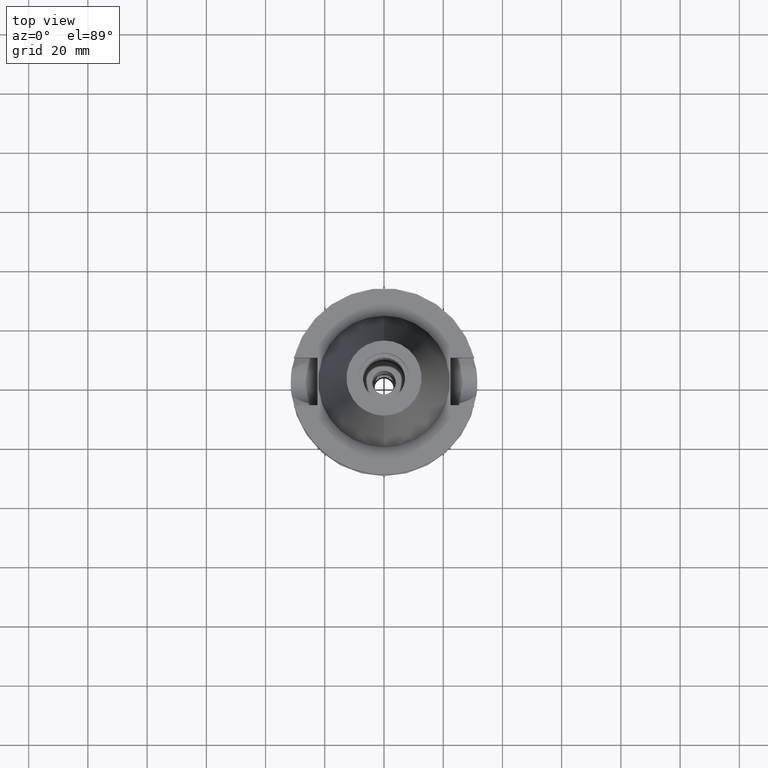
[diagram: clean part render]
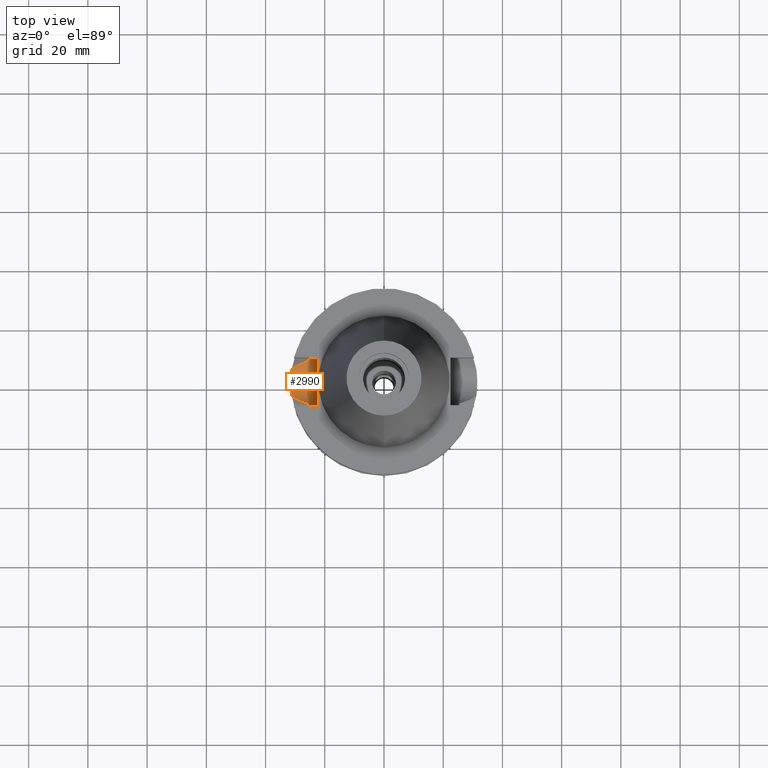
[diagram: same view with one face highlighted and labeled with its STEP entity id]
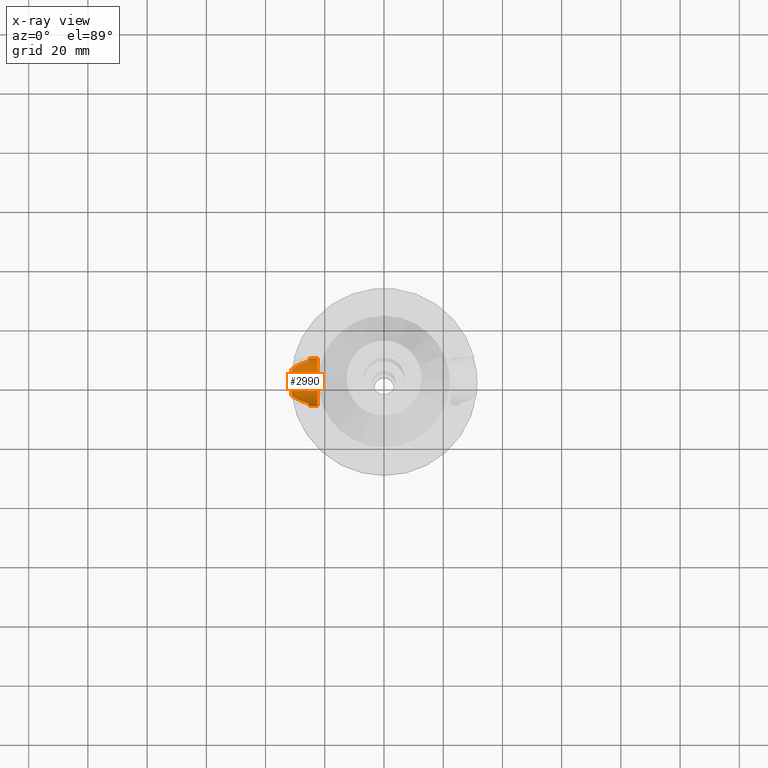
[diagram: x-ray of the same camera — body ghosted, the highlighted face saturated]
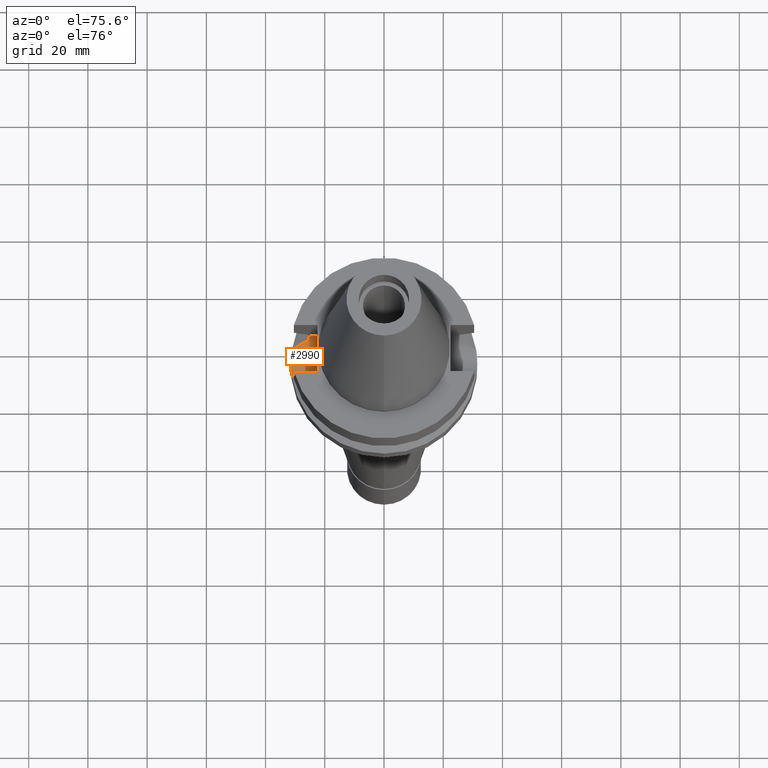
[diagram: same view with one face highlighted and labeled with its STEP entity id]
A machine part, top view. The second image highlights one B-rep face of the part: STEP entity #2990.
The next image is the same camera in x-ray: the body ghosted, the highlighted face saturated — about 0% of this face is hidden behind the body in this view.
A second angle (auxiliary view) of the same face is appended — the face is thin or edge-on in the first view.
In plain terms, the highlighted cylindrical surface (edge-blend (fillet) strip) has radius 8.05 mm, axis along (-1, 0, 0).
Its self-contained STEP definition (entity closure, byte-faithful):
#9 = CARTESIAN_POINT ( 'NONE',  ( -25.30215616128705136, 7.877576232114838817, -16.61085564858937857 ) ) ;
#84 = CARTESIAN_POINT ( 'NONE',  ( -28.27045253369333011, 6.145482800979009674, -20.15058811151968499 ) ) ;
#96 = CARTESIAN_POINT ( 'NONE',  ( -28.47105126580410683, 6.056640159330266115, -20.25303779652521996 ) ) ;
#126 = CARTESIAN_POINT ( 'NONE',  ( -27.73059495071474245, 6.369786792120077479, -19.87477692749754254 ) ) ;
#141 = LINE ( 'NONE', #2816, #1490 ) ;
#145 = CARTESIAN_POINT ( 'NONE',  ( -31.17899877608999759, 4.485536235554000051, -21.63449434733000132 ) ) ;
#206 = CARTESIAN_POINT ( 'NONE',  ( -25.48481820018466237, -7.266687417048209419, -18.43221401829534400 ) ) ;
#244 = CARTESIAN_POINT ( 'NONE',  ( -31.37925987155876939, 2.755005892786295263, -22.51447617963157199 ) ) ;
#247 = CARTESIAN_POINT ( 'NONE',  ( -29.56189235740183108, -5.521825139234294966, -20.81012895460555967 ) ) ;
#253 = CARTESIAN_POINT ( 'NONE',  ( -31.43631590508134366, -2.004794963451471457, -22.74750204099790807 ) ) ;
#269 = CARTESIAN_POINT ( 'NONE',  ( -31.17899877608999759, -4.485536235554000051, -21.63449434733000132 ) ) ;
#275 = CARTESIAN_POINT ( 'NONE',  ( -26.70417489280706747, -6.775583212540526645, -19.35007232993679338 ) ) ;
#285 = CARTESIAN_POINT ( 'NONE',  ( -25.24772266958000344, 8.050000000000000711, -14.94999999999999929 ) ) ;
#331 = EDGE_CURVE ( 'NONE', #1699, #2464, #1678, .T. ) ;
#350 = ORIENTED_EDGE ( 'NONE', *, *, #1359, .F. ) ;
#358 = CARTESIAN_POINT ( 'NONE',  ( -22.50000000000000000, 1.807578675540999863E-14, -14.94999999999999929 ) ) ;
#363 = DIRECTION ( 'NONE',  ( -1.000000000000000000, 0.0000000000000000000, 0.0000000000000000000 ) ) ;
#392 = LINE ( 'NONE', #662, #2479 ) ;
#411 = CARTESIAN_POINT ( 'NONE',  ( -22.50000000000000000, 1.807578675540999863E-14, -14.94999999999999929 ) ) ;
#457 = CARTESIAN_POINT ( 'NONE',  ( -22.50000000000000000, 8.050000000000000711, -14.94999999999999929 ) ) ;
#465 = CARTESIAN_POINT ( 'NONE',  ( -25.32121872273786423, 7.815971166074369592, -16.87703378351192995 ) ) ;
#481 = CARTESIAN_POINT ( 'NONE',  ( -31.36262909393921916, -3.014549055882889572, -22.44710279765630645 ) ) ;
#485 = CARTESIAN_POINT ( 'NONE',  ( -28.81522437845063678, -5.898219020894357456, -20.42875801180866091 ) ) ;
#491 = CARTESIAN_POINT ( 'NONE',  ( -31.46144185279717220, -1.566059266669205696, -22.84872847836161469 ) ) ;
#521 = CARTESIAN_POINT ( 'NONE',  ( -31.49233501189770124, -0.7856882655287129591, -22.97126140121503468 ) ) ;
#559 = CARTESIAN_POINT ( 'NONE',  ( -26.13322443225465364, 6.932527710513030073, -19.05674799956412002 ) ) ;
#581 = CARTESIAN_POINT ( 'NONE',  ( -30.48765877809254121, 5.010034215652698464, -21.28253732965004374 ) ) ;
#646 = VERTEX_POINT ( 'NONE', #2772 ) ;
#662 = CARTESIAN_POINT ( 'NONE',  ( -25.24772266958000344, 8.050000000000000711, -14.94999999999999929 ) ) ;
#669 = CARTESIAN_POINT ( 'NONE',  ( -25.24772266958000344, 8.050000000000000711, -14.94999999999999929 ) ) ;
#709 = CARTESIAN_POINT ( 'NONE',  ( -25.29454717857530710, 7.902012029789356795, -16.48868902742398745 ) ) ;
#722 = CARTESIAN_POINT ( 'NONE',  ( -25.43788636140669368, 7.435506143574321491, -18.11669712823325895 ) ) ;
#735 = CARTESIAN_POINT ( 'NONE',  ( -31.35519737934103190, 3.019151519516993343, -22.41476077769410935 ) ) ;
#749 = CARTESIAN_POINT ( 'NONE',  ( -31.47163488369580264, 1.545921345848329187, -22.89186723549477520 ) ) ;
#751 = CARTESIAN_POINT ( 'NONE',  ( -29.78675866908890768, -5.397312500838548743, -20.92491937365475252 ) ) ;
#756 = DIRECTION ( 'NONE',  ( -1.000000000000000000, 1.616208268639000174E-14, -1.034373291929000154E-14 ) ) ;
#763 = ORIENTED_EDGE ( 'NONE', *, *, #1007, .T. ) ;
#769 = CARTESIAN_POINT ( 'NONE',  ( -29.03082272471785430, -5.794801984329687627, -20.53889729608998138 ) ) ;
#775 = B_SPLINE_CURVE_WITH_KNOTS ( 'NONE', 3,
 ( #2937, #2234, #1506, #751, #247, #987, #769, #485, #1248, #1682, #1485, #2903, #1726, #1714, #275, #2218 ),
 .UNSPECIFIED., .F., .F.,
 ( 4, 2, 2, 1, 1, 1, 1, 2, 2, 4 ),
 ( 0.0000000000000000000, 0.2499999999999762412, 0.3749999999999650280, 0.4374999999999593103, 0.4687499999999557576, 0.4843749999999532041, 0.4921874999999522049, 0.4960937499999523714, 0.4999999999999524825, 1.000000000000000000 ),
 .UNSPECIFIED. ) ;
#789 = ORIENTED_EDGE ( 'NONE', *, *, #331, .T. ) ;
#862 = CARTESIAN_POINT ( 'NONE',  ( -28.56973307510125082, 6.011975293875946313, -20.30343792140064707 ) ) ;
#908 = ORIENTED_EDGE ( 'NONE', *, *, #2238, .T. ) ;
#959 = CARTESIAN_POINT ( 'NONE',  ( -31.41089393677246022, 2.367323069600661523, -22.64407411537204595 ) ) ;
#965 = CARTESIAN_POINT ( 'NONE',  ( -25.24772266958000344, -8.050000000000000711, -14.94999999999999929 ) ) ;
#987 = CARTESIAN_POINT ( 'NONE',  ( -29.21023835764947307, -5.704493398346500044, -20.63054100649248923 ) ) ;
#1000 = CARTESIAN_POINT ( 'NONE',  ( -31.23235557079058111, 4.114652722554404285, -21.88337053007619559 ) ) ;
#1007 = EDGE_CURVE ( 'NONE', #2492, #1094, #1536, .T. ) ;
#1014 = CARTESIAN_POINT ( 'NONE',  ( -31.42484152043655854, -2.174941912365203400, -22.70090902051182979 ) ) ;
#1057 = CARTESIAN_POINT ( 'NONE',  ( -25.53175183775000079, -7.097862220092999941, -18.74774300138999905 ) ) ;
#1071 = ORIENTED_EDGE ( 'NONE', *, *, #2662, .T. ) ;
#1094 = VERTEX_POINT ( 'NONE', #457 ) ;
#1095 = ORIENTED_EDGE ( 'NONE', *, *, #2159, .T. ) ;
#1111 = ORIENTED_EDGE ( 'NONE', *, *, #2043, .F. ) ;
#1216 = CARTESIAN_POINT ( 'NONE',  ( -31.40272378715938117, 2.473736942145134954, -22.61072056107250816 ) ) ;
#1222 = CARTESIAN_POINT ( 'NONE',  ( -25.32550226136659433, -7.802082245156296558, -16.93251888162862073 ) ) ;
#1227 = CARTESIAN_POINT ( 'NONE',  ( -31.41967125704818997, -2.247756301435980930, -22.67985970227132242 ) ) ;
#1232 = CARTESIAN_POINT ( 'NONE',  ( -25.24772266958000344, 8.050000000000022027, -15.27000127552670783 ) ) ;
#1248 = CARTESIAN_POINT ( 'NONE',  ( -28.70585517835528577, -5.949423015200947518, -20.37288560909788515 ) ) ;
#1262 = CARTESIAN_POINT ( 'NONE',  ( -25.25396593744604701, 8.030896968456886498, -15.59377931114939564 ) ) ;
#1332 = DIRECTION ( 'NONE',  ( 1.000000000000000000, 0.0000000000000000000, 0.0000000000000000000 ) ) ;
#1356 = CARTESIAN_POINT ( 'NONE',  ( -28.61167865978041291, 5.992783341118832041, -20.32486181597213459 ) ) ;
#1359 = EDGE_CURVE ( 'NONE', #2492, #2464, #141, .T. ) ;
#1416 = CARTESIAN_POINT ( 'NONE',  ( -25.39164478449762186, -7.584820969893629972, -17.65194245036900256 ) ) ;
#1441 = CARTESIAN_POINT ( 'NONE',  ( -25.36818304348085817, 7.663708172131605600, -17.48836484279778247 ) ) ;
#1455 = CARTESIAN_POINT ( 'NONE',  ( -31.28474506669879673, -3.750492911332480084, -22.12773486698684167 ) ) ;
#1460 = B_SPLINE_CURVE_WITH_KNOTS ( 'NONE', 3,
 ( #2716, #1000, #2918, #2472, #735, #244, #1736, #1216, #3133, #959, #2889, #749, #2413, #2231, #521, #2432, #491, #1709, #253, #1014, #1227, #1987, #2211, #481, #1455, #269 ),
 .UNSPECIFIED., .F., .F.,
 ( 4, 2, 2, 1, 1, 2, 2, 2, 2, 2, 1, 1, 2, 2, 4 ),
 ( 0.0000000000000000000, 0.1250000000000010270, 0.1875000000000017764, 0.2187500000000019429, 0.2343750000000019151, 0.2421875000000019429, 0.2500000000000019429, 0.5000000000000043299, 0.6250000000000055511, 0.6875000000000063283, 0.7187500000000064393, 0.7343750000000064393, 0.7421875000000064393, 0.7500000000000064393, 1.000000000000000000 ),
 .UNSPECIFIED. ) ;
#1462 = CARTESIAN_POINT ( 'NONE',  ( -25.37572817766068312, -7.637723572221417179, -17.49814693646529662 ) ) ;
#1485 = CARTESIAN_POINT ( 'NONE',  ( -28.62708948864216296, -5.985785963533841958, -20.33264766279574687 ) ) ;
#1490 = VECTOR ( 'NONE', #756, 1000.000000000000000 ) ;
#1506 = CARTESIAN_POINT ( 'NONE',  ( -30.43264853970672235, -5.016895816301862432, -21.25442950487239102 ) ) ;
#1536 = CIRCLE ( 'NONE', #1640, 8.050000000000000711 ) ;
#1537 = CARTESIAN_POINT ( 'NONE',  ( -26.69525945246331489, 6.752327689393889720, -19.34502276028162981 ) ) ;
#1542 = AXIS2_PLACEMENT_3D ( 'NONE', #411, #363, #2631 ) ;
#1640 = AXIS2_PLACEMENT_3D ( 'NONE', #358, #1332, #3082 ) ;
#1656 = CARTESIAN_POINT ( 'NONE',  ( -25.32419265906722927, -7.806329682139799608, -16.91574545217583037 ) ) ;
#1678 = B_SPLINE_CURVE_WITH_KNOTS ( 'NONE', 3,
 ( #2884, #206, #2177, #1416, #1462, #2452, #1701, #2655, #2868, #1222, #1656, #2190, #1917, #965 ),
 .UNSPECIFIED., .F., .F.,
 ( 4, 2, 2, 1, 1, 2, 2, 4 ),
 ( 0.0000000000000000000, 0.2499999999999926725, 0.3749999999999888978, 0.4374999999999870104, 0.4687499999999848455, 0.4843749999999850675, 0.4999999999999853451, 1.000000000000000000 ),
 .UNSPECIFIED. ) ;
#1682 = CARTESIAN_POINT ( 'NONE',  ( -28.65077807156714940, -5.974896528532610773, -20.34474906953258255 ) ) ;
#1699 = VERTEX_POINT ( 'NONE', #1057 ) ;
#1701 = CARTESIAN_POINT ( 'NONE',  ( -25.34387967354903992, -7.742345491371891875, -17.15662736176141578 ) ) ;
#1709 = CARTESIAN_POINT ( 'NONE',  ( -31.44514041204293164, -1.858620894216048480, -22.78313581345197036 ) ) ;
#1714 = CARTESIAN_POINT ( 'NONE',  ( -27.72540404476330878, -6.397793022164313115, -19.87202198444626688 ) ) ;
#1726 = CARTESIAN_POINT ( 'NONE',  ( -28.60223644400043952, -5.997177943917971099, -20.31995143464052589 ) ) ;
#1736 = CARTESIAN_POINT ( 'NONE',  ( -31.39062632167565781, 2.624112293225794534, -22.56124294466480151 ) ) ;
#1795 = CARTESIAN_POINT ( 'NONE',  ( -28.09296485442729008, 6.220723813404769764, -20.05992887700100979 ) ) ;
#1855 = EDGE_LOOP ( 'NONE', ( #789, #350, #763, #1111, #908, #2126, #1071, #1095 ) ) ;
#1862 = EDGE_CURVE ( 'NONE', #2414, #646, #2984, .T. ) ;
#1917 = CARTESIAN_POINT ( 'NONE',  ( -25.24772266957999989, -8.049999999999981171, -15.58999073686770487 ) ) ;
#1928 = CARTESIAN_POINT ( 'NONE',  ( -25.27269574104415994, 7.971769475022855822, -16.08146184953472257 ) ) ;
#1987 = CARTESIAN_POINT ( 'NONE',  ( -31.41616826590722766, -2.296273242441183360, -22.66558608295519051 ) ) ;
#2004 = B_SPLINE_CURVE_WITH_KNOTS ( 'NONE', 3,
 ( #285, #1232, #1262, #1928, #2893, #709, #9, #2663, #2449, #2694, #465, #1441, #722, #2436 ),
 .UNSPECIFIED., .F., .F.,
 ( 4, 2, 2, 1, 1, 2, 2, 4 ),
 ( 0.0000000000000000000, 0.2499999999999946154, 0.3749999999999918399, 0.4374999999999903966, 0.4687499999999898415, 0.4843749999999897304, 0.4999999999999895639, 1.000000000000000000 ),
 .UNSPECIFIED. ) ;
#2029 = CARTESIAN_POINT ( 'NONE',  ( -25.24772266958000344, -8.050000000000000711, -14.94999999999999929 ) ) ;
#2043 = EDGE_CURVE ( 'NONE', #3091, #1094, #392, .T. ) ;
#2056 = CARTESIAN_POINT ( 'NONE',  ( -25.53175183775000079, 7.097862220092999941, -18.74774300138999905 ) ) ;
#2091 = CARTESIAN_POINT ( 'NONE',  ( -22.50000000000000000, -8.050000000000000711, -14.94999999999999929 ) ) ;
#2126 = ORIENTED_EDGE ( 'NONE', *, *, #1862, .T. ) ;
#2159 = EDGE_CURVE ( 'NONE', #2508, #1699, #775, .T. ) ;
#2177 = CARTESIAN_POINT ( 'NONE',  ( -25.44392473217590123, -7.408251102513269792, -18.11706870842560235 ) ) ;
#2190 = CARTESIAN_POINT ( 'NONE',  ( -25.27269246206562769, -7.973290322419544829, -16.24535685341754387 ) ) ;
#2211 = CARTESIAN_POINT ( 'NONE',  ( -31.41421403793225053, -2.322853185236204876, -22.65761526773064105 ) ) ;
#2218 = CARTESIAN_POINT ( 'NONE',  ( -25.53175183775000079, -7.097862220092999941, -18.74774300138999905 ) ) ;
#2231 = CARTESIAN_POINT ( 'NONE',  ( -31.49969615243393406, -0.3969276160999170022, -22.99933701212015080 ) ) ;
#2234 = CARTESIAN_POINT ( 'NONE',  ( -30.82496303419400263, -4.754132052440501077, -21.45425688930577834 ) ) ;
#2238 = EDGE_CURVE ( 'NONE', #3091, #2414, #2004, .T. ) ;
#2271 = CARTESIAN_POINT ( 'NONE',  ( -27.47915562133237799, 6.467272319540811054, -19.74622792587973308 ) ) ;
#2333 = CYLINDRICAL_SURFACE ( 'NONE', #1542, 8.050000000000000711 ) ;
#2343 = CARTESIAN_POINT ( 'NONE',  ( -28.65197555212346714, 5.974261035078783699, -20.34544410812700832 ) ) ;
#2413 = CARTESIAN_POINT ( 'NONE',  ( -31.50021840333851841, 0.7528101738104471252, -23.00129109588318954 ) ) ;
#2414 = VERTEX_POINT ( 'NONE', #2056 ) ;
#2432 = CARTESIAN_POINT ( 'NONE',  ( -31.47051271574131803, -1.370735914441425507, -22.88488772334954646 ) ) ;
#2436 = CARTESIAN_POINT ( 'NONE',  ( -25.53175183775000079, 7.097862220092999941, -18.74774300138999905 ) ) ;
#2449 = CARTESIAN_POINT ( 'NONE',  ( -25.31652055493195874, 7.831184758220329556, -16.81426458566284410 ) ) ;
#2452 = CARTESIAN_POINT ( 'NONE',  ( -25.35411833098896750, -7.708843546315268469, -17.27003765536343849 ) ) ;
#2464 = VERTEX_POINT ( 'NONE', #2029 ) ;
#2472 = CARTESIAN_POINT ( 'NONE',  ( -31.33738292855059626, 3.198404817666005595, -22.34003903669203694 ) ) ;
#2479 = VECTOR ( 'NONE', #2640, 1000.000000000000000 ) ;
#2492 = VERTEX_POINT ( 'NONE', #2091 ) ;
#2508 = VERTEX_POINT ( 'NONE', #2619 ) ;
#2510 = CARTESIAN_POINT ( 'NONE',  ( -25.53175183775000079, 7.097862220092999941, -18.74774300138999905 ) ) ;
#2619 = CARTESIAN_POINT ( 'NONE',  ( -31.17899877608999759, -4.485536235554000051, -21.63449434733000132 ) ) ;
#2631 = DIRECTION ( 'NONE',  ( 0.0000000000000000000, 0.0000000000000000000, -1.000000000000000000 ) ) ;
#2640 = DIRECTION ( 'NONE',  ( 1.000000000000000000, 1.551559937893000172E-14, -3.620306521749999889E-14 ) ) ;
#2655 = CARTESIAN_POINT ( 'NONE',  ( -25.33292553852033535, -7.777985707516950953, -17.02558215515366058 ) ) ;
#2662 = EDGE_CURVE ( 'NONE', #646, #2508, #1460, .T. ) ;
#2663 = CARTESIAN_POINT ( 'NONE',  ( -25.31205759391835741, 7.845621557329967466, -16.75326793494471289 ) ) ;
#2694 = CARTESIAN_POINT ( 'NONE',  ( -25.31954463780458298, 7.821394976198612348, -16.85491936549401970 ) ) ;
#2716 = CARTESIAN_POINT ( 'NONE',  ( -31.17899877608999759, 4.485536235554000051, -21.63449434733000132 ) ) ;
#2772 = CARTESIAN_POINT ( 'NONE',  ( -31.17899877608999759, 4.485536235554000051, -21.63449434733000132 ) ) ;
#2811 = FACE_OUTER_BOUND ( 'NONE', #1855, .T. ) ;
#2816 = CARTESIAN_POINT ( 'NONE',  ( -22.50000000000000000, -8.050000000000000711, -14.94999999999999929 ) ) ;
#2868 = CARTESIAN_POINT ( 'NONE',  ( -25.32844325893329085, -7.792538688759367282, -16.96970524096598965 ) ) ;
#2884 = CARTESIAN_POINT ( 'NONE',  ( -25.53175183775000079, -7.097862220092999941, -18.74774300138999905 ) ) ;
#2889 = CARTESIAN_POINT ( 'NONE',  ( -31.41231539579584364, 2.348418776588061530, -22.64987495965317166 ) ) ;
#2893 = CARTESIAN_POINT ( 'NONE',  ( -25.28049982587671707, 7.946985634402524035, -16.24435369772011128 ) ) ;
#2903 = CARTESIAN_POINT ( 'NONE',  ( -28.61127840922834409, -5.993039384303371797, -20.32457053179396667 ) ) ;
#2918 = CARTESIAN_POINT ( 'NONE',  ( -31.27862120824330461, 3.742756830622989916, -22.08821775185020186 ) ) ;
#2937 = CARTESIAN_POINT ( 'NONE',  ( -31.17899877608999759, -4.485536235554000051, -21.63449434733000132 ) ) ;
#2984 = B_SPLINE_CURVE_WITH_KNOTS ( 'NONE', 3,
 ( #2510, #559, #1537, #2271, #126, #1795, #84, #96, #862, #1356, #3047, #2343, #3063, #581, #145 ),
 .UNSPECIFIED., .F., .F.,
 ( 4, 2, 2, 1, 1, 1, 2, 2, 4 ),
 ( 0.0000000000000000000, 0.2500000000000200950, 0.3750000000000300870, 0.4375000000000341394, 0.4687500000000352496, 0.4843750000000357492, 0.4921875000000349720, 0.5000000000000340838, 1.000000000000000000 ),
 .UNSPECIFIED. ) ;
#2990 = ADVANCED_FACE ( 'NONE', ( #2811 ), #2333, .F. ) ;
#3047 = CARTESIAN_POINT ( 'NONE',  ( -28.63956535638755341, 5.979977880181392536, -20.33910533084369021 ) ) ;
#3063 = CARTESIAN_POINT ( 'NONE',  ( -29.65043802380462878, 5.512453791888376031, -20.85544373312218625 ) ) ;
#3082 = DIRECTION ( 'NONE',  ( 0.0000000000000000000, 0.0000000000000000000, -1.000000000000000000 ) ) ;
#3091 = VERTEX_POINT ( 'NONE', #669 ) ;
#3133 = CARTESIAN_POINT ( 'NONE',  ( -31.40765911672681909, 2.409816726653562835, -22.63087093711657616 ) ) ;